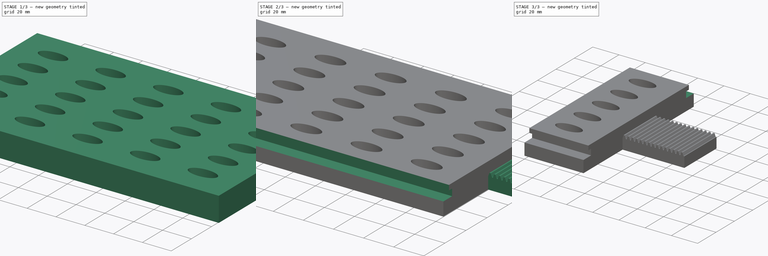
[diagram: build sequence overview — one tinted view per stage of 3, left to right]
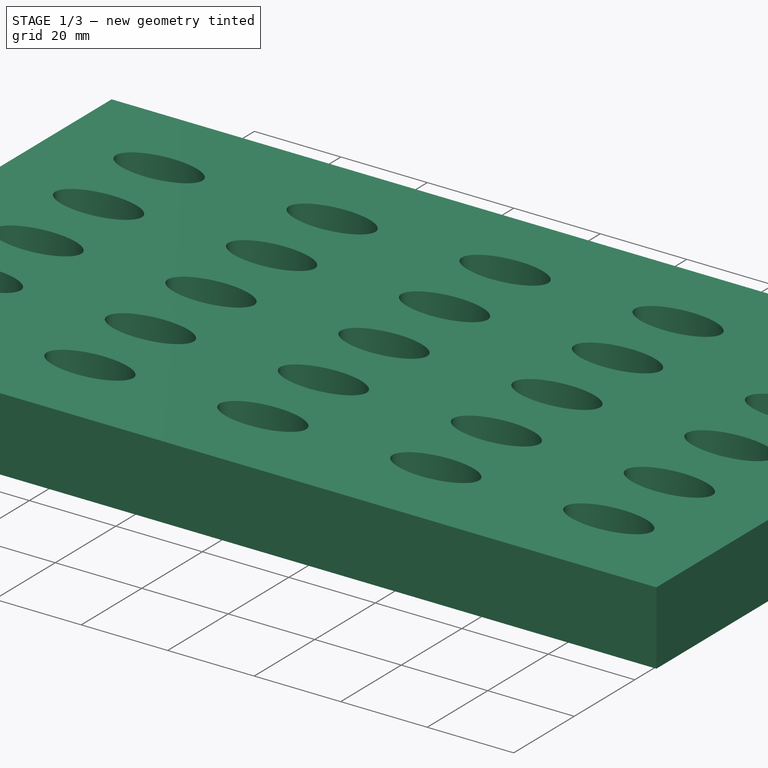
[diagram: stage 1 of 3 — iso view after this stage's code; geometry added in this stage tinted green]
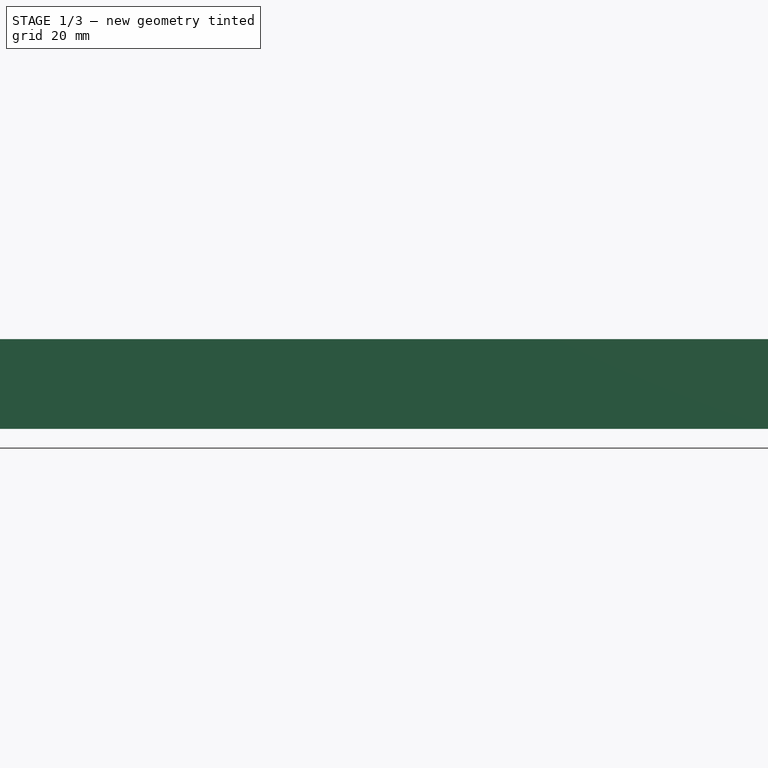
[diagram: stage 1 of 3 — front view after this stage's code; geometry added in this stage tinted green]
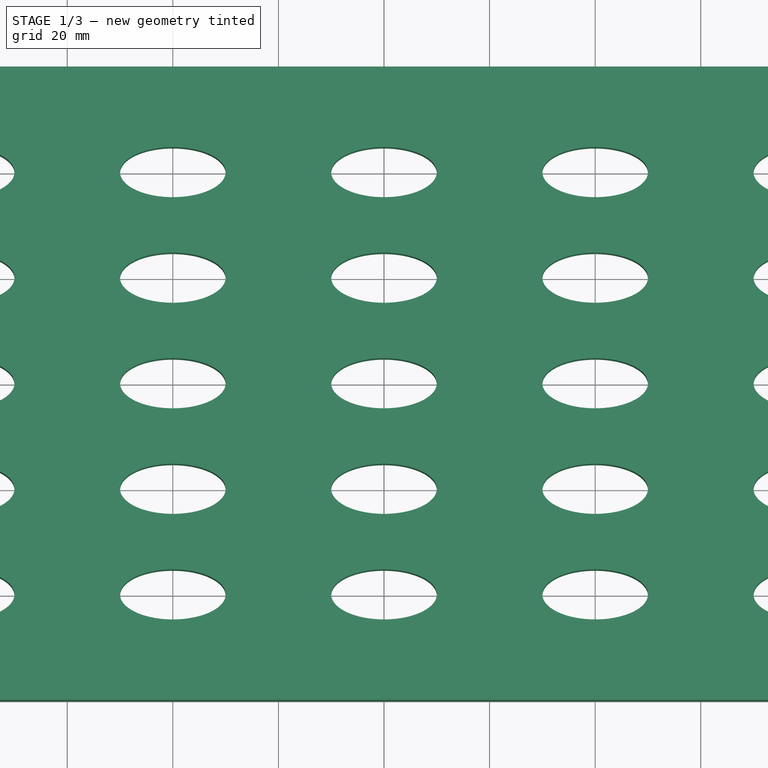
[diagram: stage 1 of 3 — top view after this stage's code; geometry added in this stage tinted green]
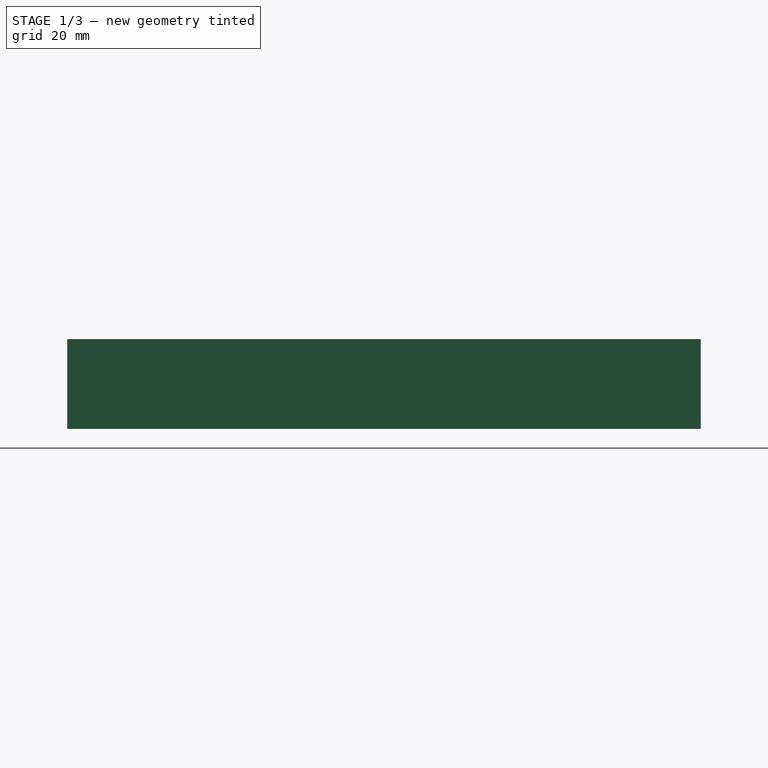
[diagram: stage 1 of 3 — right view after this stage's code; geometry added in this stage tinted green]
FCSTD DOCUMENT  (FreeCAD 0.21R33668 +26 (Git))
Label: bushing_jig_bottom
License: All rights reserved
LicenseURL: https://en.wikipedia.org/wiki/All_rights_reserved
objects: Sketcher::SketchObject×5, PartDesign::Pocket×3, PartDesign::Pad×2, PartDesign::Mirrored×1, PartDesign::Body×1
note: 17 computed .brp shape members not serialized (recipe doc carries the construction recipe); baked Part::Feature solids carry a one-line shape summary decoded from their .brp

FEATURE [Sketcher::SketchObject] Sketch
  FullyConstrained = true
  MapMode = 5
  Support = -> [XY_Plane]
  sketch-geometry (5):
    g0: LineSegment StartX=-105 StartY=-60 StartZ=0 EndX=-105 EndY=60 EndZ=0
    g1: LineSegment StartX=-105 StartY=60 StartZ=0 EndX=105 EndY=60 EndZ=0
    g2: LineSegment StartX=105 StartY=60 StartZ=0 EndX=105 EndY=-60 EndZ=0
    g3: LineSegment StartX=105 StartY=-60 StartZ=0 EndX=-105 EndY=-60 EndZ=0
    g4: GeomPoint X=0 Y=0 Z=0
  constraints (12):
    c: Coincident(g0,g1)
    c: Coincident(g1,g2)
    c: Coincident(g2,g3)
    c: Coincident(g3,g0)
    c: Horizontal(g1)
    c: Horizontal(g3)
    c: Vertical(g0)
    c: Vertical(g2)
    c: Symmetric(g1,g0,g4)
    c: Coincident(g4,g-1)
    c: DistanceX(g1,g1) = 210
    c: DistanceY(g2,g2) = 120
FEATURE [PartDesign::Pad] Pad
  Direction = (0,0,1)
  Length = 17
  Length2 = 10
  Profile = -> Sketch
  ReferenceAxis = -> Sketch [N_Axis]
  Reversed = true
  Type = 0
FEATURE [Sketcher::SketchObject] Sketch001
  FullyConstrained = true
  MapMode = 5
  Support = -> [XY_Plane]
  sketch-geometry (149):
    g0: Ellipse CenterX=-80 CenterY=40 CenterZ=0 NormalX=0 NormalY=0 NormalZ=1 MajorRadius=10 MinorRadius=4.75 AngleXU=0
    g1: LineSegment StartX=-70 StartY=40 StartZ=0 EndX=-90 EndY=40 EndZ=0
    g2: LineSegment StartX=-80 StartY=44.75 StartZ=0 EndX=-80 EndY=35.25 EndZ=0
    g3: GeomPoint X=-71.2001 Y=40 Z=0
    g4: GeomPoint X=-88.7999 Y=40 Z=0
    g5: Ellipse CenterX=-40 CenterY=40 CenterZ=0 NormalX=0 NormalY=0 NormalZ=1 MajorRadius=10 MinorRadius=4.75 AngleXU=0
    g6: LineSegment StartX=-30 StartY=40 StartZ=0 EndX=-50 EndY=40 EndZ=0
    g7: LineSegment StartX=-40 StartY=44.75 StartZ=0 EndX=-40 EndY=35.25 EndZ=0
    g8: GeomPoint X=-31.2001 Y=40 Z=0
    g9: GeomPoint X=-48.7999 Y=40 Z=0
    g10: LineSegment StartX=-80 StartY=40 StartZ=0 EndX=-40 EndY=40 EndZ=0
    g11: Ellipse CenterX=-3.4e-15 CenterY=40 CenterZ=0 NormalX=0 NormalY=0 NormalZ=1 MajorRadius=10 MinorRadius=4.75 AngleXU=0
    g12: LineSegment StartX=10 StartY=40 StartZ=0 EndX=-10 EndY=40 EndZ=0
    g13: LineSegment StartX=-3.4e-15 StartY=44.75 StartZ=0 EndX=-3.4e-15 EndY=35.25 EndZ=0
    g14: GeomPoint X=8.79986 Y=40 Z=0
    g15: GeomPoint X=-8.79986 Y=40 Z=0
    g16: LineSegment StartX=-40 StartY=40 StartZ=0 EndX=0 EndY=40 EndZ=0
    g17: Ellipse CenterX=40 CenterY=40 CenterZ=0 NormalX=0 NormalY=0 NormalZ=1 MajorRadius=10 MinorRadius=4.75 AngleXU=0
    g18: LineSegment StartX=50 StartY=40 StartZ=0 EndX=30 EndY=40 EndZ=0
    g19: LineSegment StartX=40 StartY=44.75 StartZ=0 EndX=40 EndY=35.25 EndZ=0
    g20: GeomPoint X=48.7999 Y=40 Z=0
    g21: GeomPoint X=31.2001 Y=40 Z=0
    g22: LineSegment StartX=-3.4e-15 StartY=40 StartZ=0 EndX=40 EndY=40 EndZ=0
    g23: Ellipse CenterX=80 CenterY=40 CenterZ=0 NormalX=0 NormalY=0 NormalZ=1 MajorRadius=10 MinorRadius=4.75 AngleXU=0
    g24: LineSegment StartX=90 StartY=40 StartZ=0 EndX=70 EndY=40 EndZ=0
    g25: LineSegment StartX=80 StartY=44.75 StartZ=0 EndX=80 EndY=35.25 EndZ=0
    g26: GeomPoint X=88.7999 Y=40 Z=0
    g27: GeomPoint X=71.2001 Y=40 Z=0
    g28: LineSegment StartX=40 StartY=40 StartZ=0 EndX=80 EndY=40 EndZ=0
    g29: Ellipse CenterX=-80 CenterY=20 CenterZ=0 NormalX=0 NormalY=0 NormalZ=1 MajorRadius=10 MinorRadius=4.75 AngleXU=0
    g30: LineSegment StartX=-70 StartY=20 StartZ=0 EndX=-90 EndY=20 EndZ=0
    g31: LineSegment StartX=-80 StartY=24.75 StartZ=0 EndX=-80 EndY=15.25 EndZ=0
    g32: GeomPoint X=-71.2001 Y=20 Z=0
    g33: GeomPoint X=-88.7999 Y=20 Z=0
    g34: LineSegment StartX=-80 StartY=40 StartZ=0 EndX=-80 EndY=20 EndZ=0
    g35: Ellipse CenterX=-40 CenterY=20 CenterZ=0 NormalX=0 NormalY=0 NormalZ=1 MajorRadius=10 MinorRadius=4.75 AngleXU=0
    g36: LineSegment StartX=-30 StartY=20 StartZ=0 EndX=-50 EndY=20 EndZ=0
    g37: LineSegment StartX=-40 StartY=24.75 StartZ=0 EndX=-40 EndY=15.25 EndZ=0
    g38: GeomPoint X=-31.2001 Y=20 Z=0
    g39: GeomPoint X=-48.7999 Y=20 Z=0
    g40: LineSegment StartX=-80 StartY=20 StartZ=0 EndX=-40 EndY=20 EndZ=0
    g41: Ellipse CenterX=0 CenterY=20 CenterZ=0 NormalX=0 NormalY=0 NormalZ=1 MajorRadius=10 MinorRadius=4.75 AngleXU=0
    g42: LineSegment StartX=10 StartY=20 StartZ=0 EndX=-10 EndY=20 EndZ=0
    g43: LineSegment StartX=-2.7e-15 StartY=24.75 StartZ=0 EndX=-2.7e-15 EndY=15.25 EndZ=0
    g44: GeomPoint X=8.79986 Y=20 Z=0
    g45: GeomPoint X=-8.79986 Y=20 Z=0
    g46: LineSegment StartX=-40 StartY=20 StartZ=0 EndX=0 EndY=20 EndZ=0
    g47: Ellipse CenterX=40 CenterY=20 CenterZ=0 NormalX=0 NormalY=0 NormalZ=1 MajorRadius=10 MinorRadius=4.75 AngleXU=0
    g48: LineSegment StartX=50 StartY=20 StartZ=0 EndX=30 EndY=20 EndZ=0
    g49: LineSegment StartX=40 StartY=24.75 StartZ=0 EndX=40 EndY=15.25 EndZ=0
    g50: GeomPoint X=48.7999 Y=20 Z=0
    g51: GeomPoint X=31.2001 Y=20 Z=0
    g52: LineSegment StartX=0 StartY=20 StartZ=0 EndX=40 EndY=20 EndZ=0
    g53: Ellipse CenterX=80 CenterY=20 CenterZ=0 NormalX=0 NormalY=0 NormalZ=1 MajorRadius=10 MinorRadius=4.75 AngleXU=0
    g54: LineSegment StartX=90 StartY=20 StartZ=0 EndX=70 EndY=20 EndZ=0
    g55: LineSegment StartX=80 StartY=24.75 StartZ=0 EndX=80 EndY=15.25 EndZ=0
    g56: GeomPoint X=88.7999 Y=20 Z=0
    g57: GeomPoint X=71.2001 Y=20 Z=0
    g58: LineSegment StartX=40 StartY=20 StartZ=0 EndX=80 EndY=20 EndZ=0
    g59: Ellipse CenterX=-80 CenterY=0 CenterZ=0 NormalX=0 NormalY=0 NormalZ=1 MajorRadius=10 MinorRadius=4.75 AngleXU=0
    g60: LineSegment StartX=-70 StartY=0 StartZ=0 EndX=-90 EndY=0 EndZ=0
    g61: LineSegment StartX=-80 StartY=4.75 StartZ=0 EndX=-80 EndY=-4.75 EndZ=0
    g62: GeomPoint X=-71.2001 Y=0 Z=0
    g63: GeomPoint X=-88.7999 Y=0 Z=0
    g64: LineSegment StartX=-80 StartY=20 StartZ=0 EndX=-80 EndY=0 EndZ=0
    g65: Ellipse CenterX=-40 CenterY=0 CenterZ=0 NormalX=0 NormalY=0 NormalZ=1 MajorRadius=10 MinorRadius=4.75 AngleXU=0
    g66: LineSegment StartX=-30 StartY=0 StartZ=0 EndX=-50 EndY=0 EndZ=0
    g67: LineSegment StartX=-40 StartY=4.75 StartZ=0 EndX=-40 EndY=-4.75 EndZ=0
    g68: GeomPoint X=-31.2001 Y=0 Z=0
    g69: GeomPoint X=-48.7999 Y=0 Z=0
    g70: LineSegment StartX=-80 StartY=0 StartZ=0 EndX=-40 EndY=0 EndZ=0
    g71: Ellipse CenterX=0 CenterY=0 CenterZ=0 NormalX=0 NormalY=0 NormalZ=1 MajorRadius=10 MinorRadius=4.75 AngleXU=0
    g72: LineSegment StartX=10 StartY=0 StartZ=0 EndX=-10 EndY=0 EndZ=0
    g73: LineSegment StartX=0 StartY=4.75 StartZ=0 EndX=0 EndY=-4.75 EndZ=0
    g74: GeomPoint X=8.79986 Y=0 Z=0
    g75: GeomPoint X=-8.79986 Y=0 Z=0
    g76: LineSegment StartX=-40 StartY=0 StartZ=0 EndX=0 EndY=0 EndZ=0
    g77: Ellipse CenterX=40 CenterY=0 CenterZ=0 NormalX=0 NormalY=0 NormalZ=1 MajorRadius=10 MinorRadius=4.75 AngleXU=0
    g78: LineSegment StartX=50 StartY=0 StartZ=0 EndX=30 EndY=0 EndZ=0
    g79: LineSegment StartX=40 StartY=4.75 StartZ=0 EndX=40 EndY=-4.75 EndZ=0
    g80: GeomPoint X=48.7999 Y=0 Z=0
    g81: GeomPoint X=31.2001 Y=0 Z=0
    g82: LineSegment StartX=0 StartY=0 StartZ=0 EndX=40 EndY=0 EndZ=0
    g83: Ellipse CenterX=80 CenterY=0 CenterZ=0 NormalX=0 NormalY=0 NormalZ=1 MajorRadius=10 MinorRadius=4.75 AngleXU=0
    g84: LineSegment StartX=90 StartY=0 StartZ=0 EndX=70 EndY=0 EndZ=0
    g85: LineSegment StartX=80 StartY=4.75 StartZ=0 EndX=80 EndY=-4.75 EndZ=0
    g86: GeomPoint X=88.7999 Y=0 Z=0
    g87: GeomPoint X=71.2001 Y=0 Z=0
    g88: LineSegment StartX=40 StartY=0 StartZ=0 EndX=80 EndY=0 EndZ=0
    g89: Ellipse CenterX=-80 CenterY=-20 CenterZ=0 NormalX=0 NormalY=0 NormalZ=1 MajorRadius=10 MinorRadius=4.75 AngleXU=0
    g90: LineSegment StartX=-70 StartY=-20 StartZ=0 EndX=-90 EndY=-20 EndZ=0
    g91: LineSegment StartX=-80 StartY=-15.25 StartZ=0 EndX=-80 EndY=-24.75 EndZ=0
    g92: GeomPoint X=-71.2001 Y=-20 Z=0
    g93: GeomPoint X=-88.7999 Y=-20 Z=0
    g94: LineSegment StartX=-80 StartY=0 StartZ=0 EndX=-80 EndY=-20 EndZ=0
    g95: Ellipse CenterX=-40 CenterY=-20 CenterZ=0 NormalX=0 NormalY=0 NormalZ=1 MajorRadius=10 MinorRadius=4.75 AngleXU=0
    g96: LineSegment StartX=-30 StartY=-20 StartZ=0 EndX=-50 EndY=-20 EndZ=0
    g97: LineSegment StartX=-40 StartY=-15.25 StartZ=0 EndX=-40 EndY=-24.75 EndZ=0
    g98: GeomPoint X=-31.2001 Y=-20 Z=0
    g99: GeomPoint X=-48.7999 Y=-20 Z=0
    g100: LineSegment StartX=-80 StartY=-20 StartZ=0 EndX=-40 EndY=-20 EndZ=0
    g101: Ellipse CenterX=1.3e-15 CenterY=-20 CenterZ=0 NormalX=0 NormalY=0 NormalZ=1 MajorRadius=10 MinorRadius=4.75 AngleXU=0
    g102: LineSegment StartX=10 StartY=-20 StartZ=0 EndX=-10 EndY=-20 EndZ=0
    g103: LineSegment StartX=1.3e-15 StartY=-15.25 StartZ=0 EndX=1.3e-15 EndY=-24.75 EndZ=0
    g104: GeomPoint X=8.79986 Y=-20 Z=0
    g105: GeomPoint X=-8.79986 Y=-20 Z=0
    g106: LineSegment StartX=-40 StartY=-20 StartZ=0 EndX=0 EndY=-20 EndZ=0
    g107: Ellipse CenterX=40 CenterY=-20 CenterZ=0 NormalX=0 NormalY=0 NormalZ=1 MajorRadius=10 MinorRadius=4.75 AngleXU=0
    g108: LineSegment StartX=50 StartY=-20 StartZ=0 EndX=30 EndY=-20 EndZ=0
    g109: LineSegment StartX=40 StartY=-15.25 StartZ=0 EndX=40 EndY=-24.75 EndZ=0
    g110: GeomPoint X=48.7999 Y=-20 Z=0
    g111: GeomPoint X=31.2001 Y=-20 Z=0
    g112: LineSegment StartX=1.3e-15 StartY=-20 StartZ=0 EndX=40 EndY=-20 EndZ=0
    g113: Ellipse CenterX=80 CenterY=-20 CenterZ=0 NormalX=0 NormalY=0 NormalZ=1 MajorRadius=10 MinorRadius=4.75 AngleXU=0
    g114: LineSegment StartX=90 StartY=-20 StartZ=0 EndX=70 EndY=-20 EndZ=0
    g115: LineSegment StartX=80 StartY=-15.25 StartZ=0 EndX=80 EndY=-24.75 EndZ=0
    g116: GeomPoint X=88.7999 Y=-20 Z=0
    g117: GeomPoint X=71.2001 Y=-20 Z=0
    g118: LineSegment StartX=40 StartY=-20 StartZ=0 EndX=80 EndY=-20 EndZ=0
    g119: Ellipse CenterX=-80 CenterY=-40 CenterZ=0 NormalX=0 NormalY=0 NormalZ=1 MajorRadius=10 MinorRadius=4.75 AngleXU=0
    g120: LineSegment StartX=-70 StartY=-40 StartZ=0 EndX=-90 EndY=-40 EndZ=0
    g121: LineSegment StartX=-80 StartY=-35.25 StartZ=0 EndX=-80 EndY=-44.75 EndZ=0
    g122: GeomPoint X=-71.2001 Y=-40 Z=0
    g123: GeomPoint X=-88.7999 Y=-40 Z=0
    g124: LineSegment StartX=-80 StartY=-20 StartZ=0 EndX=-80 EndY=-40 EndZ=0
    g125: Ellipse CenterX=-40 CenterY=-40 CenterZ=0 NormalX=0 NormalY=0 NormalZ=1 MajorRadius=10 MinorRadius=4.75 AngleXU=0
    g126: LineSegment StartX=-30 StartY=-40 StartZ=0 EndX=-50 EndY=-40 EndZ=0
    g127: LineSegment StartX=-40 StartY=-35.25 StartZ=0 EndX=-40 EndY=-44.75 EndZ=0
    g128: GeomPoint X=-31.2001 Y=-40 Z=0
    g129: GeomPoint X=-48.7999 Y=-40 Z=0
    g130: LineSegment StartX=-80 StartY=-40 StartZ=0 EndX=-40 EndY=-40 EndZ=0
    g131: Ellipse CenterX=3e-16 CenterY=-40 CenterZ=0 NormalX=0 NormalY=0 NormalZ=1 MajorRadius=10 MinorRadius=4.75 AngleXU=0
    g132: LineSegment StartX=10 StartY=-40 StartZ=0 EndX=-10 EndY=-40 EndZ=0
    g133: LineSegment StartX=3e-16 StartY=-35.25 StartZ=0 EndX=3e-16 EndY=-44.75 EndZ=0
    g134: GeomPoint X=8.79986 Y=-40 Z=0
    g135: GeomPoint X=-8.79986 Y=-40 Z=0
    g136: LineSegment StartX=-40 StartY=-40 StartZ=0 EndX=0 EndY=-40 EndZ=0
    g137: Ellipse CenterX=40 CenterY=-40 CenterZ=0 NormalX=0 NormalY=0 NormalZ=1 MajorRadius=10 MinorRadius=4.75 AngleXU=0
    g138: LineSegment StartX=50 StartY=-40 StartZ=0 EndX=30 EndY=-40 EndZ=0
    g139: LineSegment StartX=40 StartY=-35.25 StartZ=0 EndX=40 EndY=-44.75 EndZ=0
    g140: GeomPoint X=48.7999 Y=-40 Z=0
    g141: GeomPoint X=31.2001 Y=-40 Z=0
    g142: LineSegment StartX=3e-16 StartY=-40 StartZ=0 EndX=40 EndY=-40 EndZ=0
    g143: Ellipse CenterX=80 CenterY=-40 CenterZ=0 NormalX=0 NormalY=0 NormalZ=1 MajorRadius=10 MinorRadius=4.75 AngleXU=0
    g144: LineSegment StartX=90 StartY=-40 StartZ=0 EndX=70 EndY=-40 EndZ=0
    g145: LineSegment StartX=80 StartY=-35.25 StartZ=0 EndX=80 EndY=-44.75 EndZ=0
    g146: GeomPoint X=88.7999 Y=-40 Z=0
    g147: GeomPoint X=71.2001 Y=-40 Z=0
    g148: LineSegment StartX=40 StartY=-40 StartZ=0 EndX=80 EndY=-40 EndZ=0
  constraints (197):
    c: InternalAlignment(g1-g4 -> g0) x4
    c: Horizontal(g1)
    c: DistanceY(g2,g2) = 9.5
    c: DistanceX(g1,g1) = 20
    c: InternalAlignment(g6-g9 -> g5) x4
    c: Horizontal(g6)
    c: Equal(g2,g7) = 9.5
    c: Equal(g1,g6) = 20
    c: Coincident(g0,g10)
    c: Coincident(g5,g10)
    c: Distance(g10) = 40
    c: Angle(g10) = 0
    c: InternalAlignment(g12-g15 -> g11) x4
    c: Horizontal(g12)
    c: Equal(g2,g13) = 9.5
    c: Equal(g1,g12) = 20
    c: Coincident(g5,g16)
    c: Coincident(g11,g16)
    c: Equal(g10,g16)
    c: Parallel(g16,g10)
    c: InternalAlignment(g18-g21 -> g17) x4
    c: Horizontal(g18)
    c: Equal(g2,g19) = 9.5
    c: Equal(g1,g18) = 20
    c: Coincident(g11,g22)
    c: Coincident(g17,g22)
    c: Equal(g10,g22)
    c: Parallel(g22,g10)
    c: InternalAlignment(g24-g27 -> g23) x4
    c: Horizontal(g24)
    c: Equal(g2,g25) = 9.5
    c: Equal(g1,g24) = 20
    c: Coincident(g17,g28)
    c: Coincident(g23,g28)
    c: Equal(g10,g28)
    c: Parallel(g28,g10)
    c: InternalAlignment(g30-g33 -> g29) x4
    c: Horizontal(g30)
    c: Equal(g2,g31) = 9.5
    c: Equal(g1,g30) = 20
    c: Coincident(g0,g34)
    c: Coincident(g29,g34)
    c: Distance(g34) = 20
    c: Perpendicular(g34,g10)
    c: InternalAlignment(g36-g39 -> g35) x4
    c: Horizontal(g36)
    c: Equal(g2,g37) = 9.5
    c: Equal(g1,g36) = 20
    c: Coincident(g29,g40)
    c: Coincident(g35,g40)
    c: Equal(g10,g40)
    c: Parallel(g40,g10)
    c: InternalAlignment(g42-g45 -> g41) x4
    c: Horizontal(g42)
    c: Equal(g2,g43) = 9.5
    c: Equal(g1,g42) = 20
    c: Coincident(g35,g46)
    c: Coincident(g41,g46)
    c: Equal(g10,g46)
    c: Parallel(g46,g10)
    c: InternalAlignment(g48-g51 -> g47) x4
    c: Horizontal(g48)
    c: Equal(g2,g49) = 9.5
    c: Equal(g1,g48) = 20
    c: Coincident(g41,g52)
    c: Coincident(g47,g52)
    c: Equal(g10,g52)
    c: Parallel(g52,g10)
    c: InternalAlignment(g54-g57 -> g53) x4
    c: Horizontal(g54)
    c: Equal(g2,g55) = 9.5
    c: Equal(g1,g54) = 20
    c: Coincident(g47,g58)
    c: Coincident(g53,g58)
    c: Equal(g10,g58)
    c: Parallel(g58,g10)
    c: InternalAlignment(g60-g63 -> g59) x4
    c: Horizontal(g60)
    c: Equal(g2,g61) = 9.5
    c: Equal(g1,g60) = 20
    c: Coincident(g29,g64)
    c: Coincident(g59,g64)
    c: Equal(g34,g64)
    c: Perpendicular(g64,g10)
    c: InternalAlignment(g66-g69 -> g65) x4
    c: Horizontal(g66)
    c: Equal(g2,g67) = 9.5
    c: Equal(g1,g66) = 20
    c: Coincident(g59,g70)
    c: Coincident(g65,g70)
    c: Equal(g10,g70)
    c: Parallel(g70,g10)
    c: InternalAlignment(g72-g75 -> g71) x4
    c: Horizontal(g72)
    c: Equal(g2,g73) = 9.5
    c: Equal(g1,g72) = 20
    c: Coincident(g65,g76)
    c: Coincident(g71,g76)
    c: Equal(g10,g76)
    c: Parallel(g76,g10)
    c: InternalAlignment(g78-g81 -> g77) x4
    c: Horizontal(g78)
    c: Equal(g2,g79) = 9.5
    c: Equal(g1,g78) = 20
    c: Coincident(g71,g82)
    c: Coincident(g77,g82)
    c: Equal(g10,g82)
    c: Parallel(g82,g10)
    c: InternalAlignment(g84-g87 -> g83) x4
    c: Horizontal(g84)
    c: Equal(g2,g85) = 9.5
    c: Equal(g1,g84) = 20
    c: Coincident(g77,g88)
    c: Coincident(g83,g88)
    c: Equal(g10,g88)
    c: Parallel(g88,g10)
    c: InternalAlignment(g90-g93 -> g89) x4
    c: Horizontal(g90)
    c: Equal(g2,g91) = 9.5
    c: Equal(g1,g90) = 20
    c: Coincident(g59,g94)
    c: Coincident(g89,g94)
    c: Equal(g34,g94)
    c: Perpendicular(g94,g10)
    c: InternalAlignment(g96-g99 -> g95) x4
    c: Horizontal(g96)
    c: Equal(g2,g97) = 9.5
    c: Equal(g1,g96) = 20
    c: Coincident(g89,g100)
    c: Coincident(g95,g100)
    c: Equal(g10,g100)
    c: Parallel(g100,g10)
    c: InternalAlignment(g102-g105 -> g101) x4
    c: Horizontal(g102)
    c: Equal(g2,g103) = 9.5
    c: Equal(g1,g102) = 20
    c: Coincident(g95,g106)
    c: Coincident(g101,g106)
    c: Equal(g10,g106)
    c: Parallel(g106,g10)
    c: InternalAlignment(g108-g111 -> g107) x4
    c: Horizontal(g108)
    c: Equal(g2,g109) = 9.5
    c: Equal(g1,g108) = 20
    c: Coincident(g101,g112)
    c: Coincident(g107,g112)
    c: Equal(g10,g112)
    c: Parallel(g112,g10)
    c: InternalAlignment(g114-g117 -> g113) x4
    c: Horizontal(g114)
    c: Equal(g2,g115) = 9.5
    c: Equal(g1,g114) = 20
    c: Coincident(g107,g118)
    c: Coincident(g113,g118)
    c: Equal(g10,g118)
    c: Parallel(g118,g10)
    c: InternalAlignment(g120-g123 -> g119) x4
    c: Horizontal(g120)
    c: Equal(g2,g121) = 9.5
    c: Equal(g1,g120) = 20
    c: Coincident(g89,g124)
    c: Coincident(g119,g124)
    c: Equal(g34,g124)
    c: Perpendicular(g124,g10)
    c: InternalAlignment(g126-g129 -> g125) x4
    c: Horizontal(g126)
    c: Equal(g2,g127) = 9.5
    c: Equal(g1,g126) = 20
    c: Coincident(g119,g130)
    c: Coincident(g125,g130)
    c: Equal(g10,g130)
    c: Parallel(g130,g10)
    c: InternalAlignment(g132-g135 -> g131) x4
    c: Horizontal(g132)
    c: Equal(g2,g133) = 9.5
    c: Equal(g1,g132) = 20
    c: Coincident(g125,g136)
    c: Coincident(g131,g136)
    c: Equal(g10,g136)
    c: Parallel(g136,g10)
    c: InternalAlignment(g138-g141 -> g137) x4
    c: Horizontal(g138)
    c: Equal(g2,g139) = 9.5
    c: Equal(g1,g138) = 20
    c: Coincident(g131,g142)
    c: Coincident(g137,g142)
    c: Equal(g10,g142)
    c: Parallel(g142,g10)
    c: InternalAlignment(g144-g147 -> g143) x4
    c: Horizontal(g144)
    c: Equal(g2,g145) = 9.5
    c: Equal(g1,g144) = 20
    c: Coincident(g137,g148)
    c: Coincident(g143,g148)
    c: Equal(g10,g148)
    c: Parallel(g148,g10)
    c: Coincident(g71,g-1)
FEATURE [PartDesign::Pocket] Pocket
  BaseFeature = -> Pad
  Direction = (0,0,-1)
  Length = 21
  Length2 = 5
  Profile = -> Sketch001
  ReferenceAxis = -> Sketch001 [N_Axis]
  Type = 0
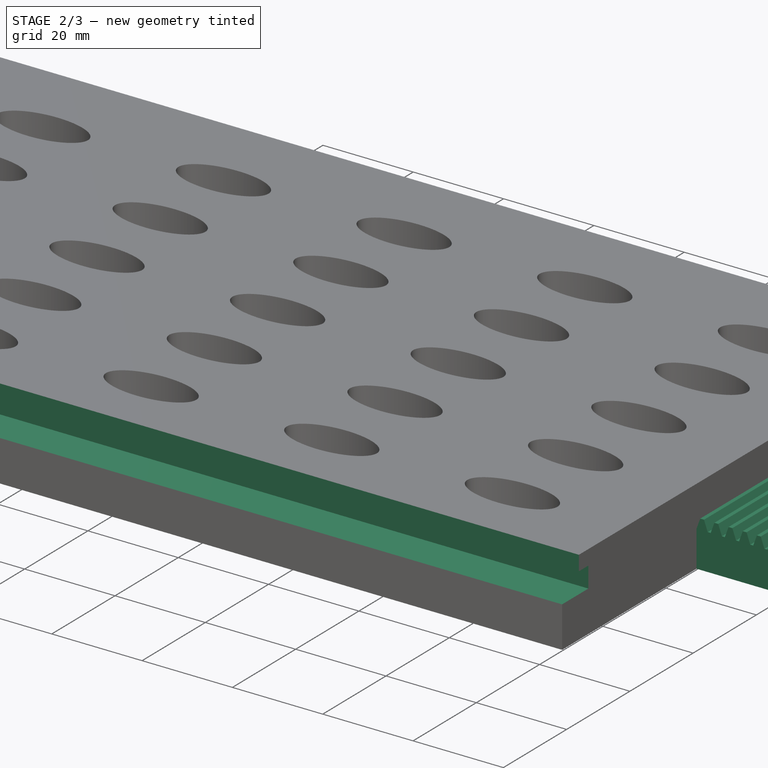
[diagram: stage 2 of 3 — iso view after this stage's code; geometry added in this stage tinted green]
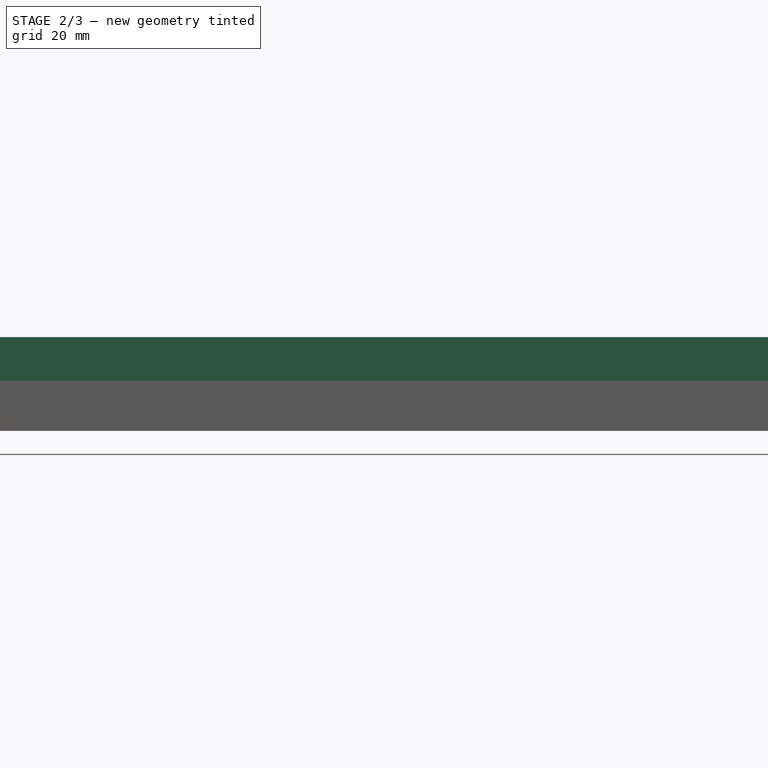
[diagram: stage 2 of 3 — front view after this stage's code; geometry added in this stage tinted green]
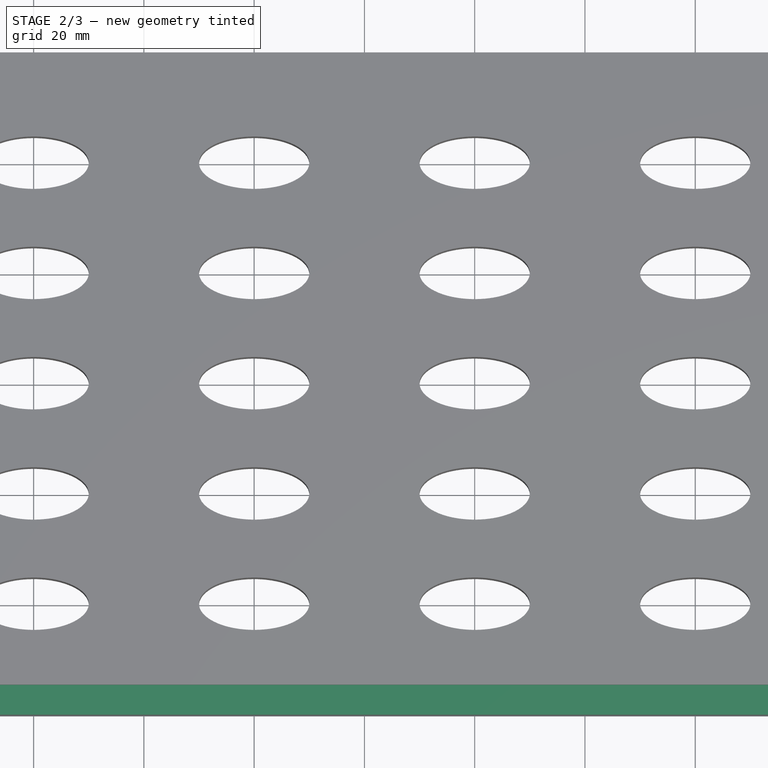
[diagram: stage 2 of 3 — top view after this stage's code; geometry added in this stage tinted green]
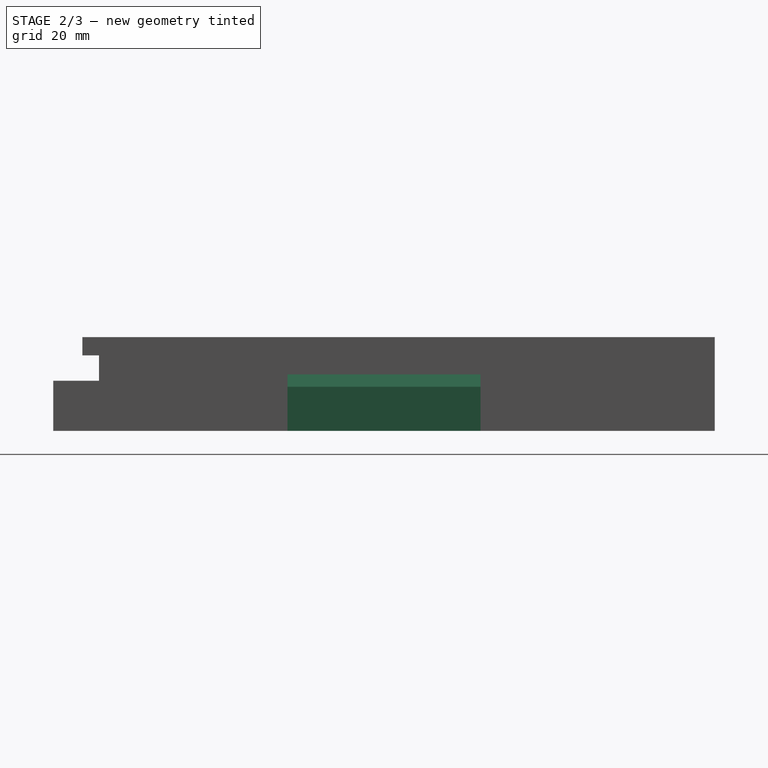
[diagram: stage 2 of 3 — right view after this stage's code; geometry added in this stage tinted green]
FEATURE [Sketcher::SketchObject] Sketch002
  ExternalGeometry = -> [Pocket]
  FullyConstrained = true
  MapMode = 5
  Placement = pos=(0,0,0) rot=(1,0,0;1.5708rad)
  Support = -> [XZ_Plane]
  sketch-geometry (77):
    g0: LineSegment StartX=105 StartY=-17 StartZ=0 EndX=152.1 EndY=-17 EndZ=0
    g1: LineSegment StartX=152.1 StartY=-17 StartZ=0 EndX=152.1 EndY=-9 EndZ=0
    g2: LineSegment StartX=105 StartY=-17 StartZ=0 EndX=105 EndY=-9 EndZ=0
    g3: LineSegment StartX=105.819 StartY=-6.75 StartZ=0 EndX=106.661 EndY=-6.75 EndZ=0
    g4: LineSegment StartX=105.819 StartY=-6.75 StartZ=0 EndX=105 EndY=-9 EndZ=0
    g5: LineSegment StartX=106.661 StartY=-6.75 StartZ=0 EndX=107.48 EndY=-9 EndZ=0
    g6: LineSegment StartX=105.455 StartY=-7.75 StartZ=0 EndX=150.985 EndY=-7.75 EndZ=0
    g7: LineSegment StartX=107.48 StartY=-9 StartZ=0 EndX=108.14 EndY=-9 EndZ=0
    g8: LineSegment StartX=108.14 StartY=-9 StartZ=0 EndX=108.959 EndY=-6.75 EndZ=0
    g9: LineSegment StartX=108.959 StartY=-6.75 StartZ=0 EndX=109.801 EndY=-6.75 EndZ=0
    g10: LineSegment StartX=109.801 StartY=-6.75 StartZ=0 EndX=110.62 EndY=-9 EndZ=0
    g11: GeomPoint X=108.595 Y=-7.75 Z=0
    g12: LineSegment StartX=105.455 StartY=-7.75 StartZ=0 EndX=105.455 EndY=-9 EndZ=0
    g13: LineSegment StartX=106.24 StartY=-6.75 StartZ=0 EndX=106.24 EndY=-9 EndZ=0
    g14: LineSegment StartX=105 StartY=-9 StartZ=0 EndX=105 EndY=-9 EndZ=0
    g15: LineSegment StartX=110.62 StartY=-9 StartZ=0 EndX=111.28 EndY=-9 EndZ=0
    g16: GeomPoint X=107.025 Y=-7.75 Z=0
    g17: GeomPoint X=110.165 Y=-7.75 Z=0
    g18: LineSegment StartX=112.099 StartY=-6.75 StartZ=0 EndX=111.28 EndY=-9 EndZ=0
    g19: LineSegment StartX=112.099 StartY=-6.75 StartZ=0 EndX=112.941 EndY=-6.75 EndZ=0
    g20: LineSegment StartX=112.941 StartY=-6.75 StartZ=0 EndX=113.76 EndY=-9 EndZ=0
    g21: LineSegment StartX=113.76 StartY=-9 StartZ=0 EndX=114.42 EndY=-9 EndZ=0
    g22: LineSegment StartX=114.42 StartY=-9 StartZ=0 EndX=115.239 EndY=-6.75 EndZ=0
    g23: LineSegment StartX=115.239 StartY=-6.75 StartZ=0 EndX=116.081 EndY=-6.75 EndZ=0
    g24: LineSegment StartX=116.081 StartY=-6.75 StartZ=0 EndX=116.9 EndY=-9 EndZ=0
    g25: LineSegment StartX=116.9 StartY=-9 StartZ=0 EndX=117.56 EndY=-9 EndZ=0
    g26: LineSegment StartX=105.819 StartY=-6.75 StartZ=0 EndX=112.099 EndY=-6.75 EndZ=0
    g27: LineSegment StartX=118.379 StartY=-6.75 StartZ=0 EndX=117.56 EndY=-9 EndZ=0
    g28: LineSegment StartX=118.379 StartY=-6.75 StartZ=0 EndX=119.221 EndY=-6.75 EndZ=0
    g29: LineSegment StartX=119.221 StartY=-6.75 StartZ=0 EndX=120.04 EndY=-9 EndZ=0
    g30: LineSegment StartX=120.04 StartY=-9 StartZ=0 EndX=120.7 EndY=-9 EndZ=0
    g31: LineSegment StartX=120.7 StartY=-9 StartZ=0 EndX=121.519 EndY=-6.75 EndZ=0
    g32: LineSegment StartX=121.519 StartY=-6.75 StartZ=0 EndX=122.361 EndY=-6.75 EndZ=0
    g33: LineSegment StartX=122.361 StartY=-6.75 StartZ=0 EndX=123.18 EndY=-9 EndZ=0
    g34: LineSegment StartX=123.18 StartY=-9 StartZ=0 EndX=123.84 EndY=-9 EndZ=0
    g35: LineSegment StartX=112.099 StartY=-6.75 StartZ=0 EndX=118.379 EndY=-6.75 EndZ=0
    g36: LineSegment StartX=124.659 StartY=-6.75 StartZ=0 EndX=123.84 EndY=-9 EndZ=0
    g37: LineSegment StartX=124.659 StartY=-6.75 StartZ=0 EndX=125.501 EndY=-6.75 EndZ=0
    g38: LineSegment StartX=125.501 StartY=-6.75 StartZ=0 EndX=126.32 EndY=-9 EndZ=0
    g39: LineSegment StartX=126.32 StartY=-9 StartZ=0 EndX=126.98 EndY=-9 EndZ=0
    g40: LineSegment StartX=126.98 StartY=-9 StartZ=0 EndX=127.799 EndY=-6.75 EndZ=0
    g41: LineSegment StartX=127.799 StartY=-6.75 StartZ=0 EndX=128.641 EndY=-6.75 EndZ=0
    g42: LineSegment StartX=128.641 StartY=-6.75 StartZ=0 EndX=129.46 EndY=-9 EndZ=0
    g43: LineSegment StartX=129.46 StartY=-9 StartZ=0 EndX=130.12 EndY=-9 EndZ=0
    g44: LineSegment StartX=118.379 StartY=-6.75 StartZ=0 EndX=124.659 EndY=-6.75 EndZ=0
    g45: LineSegment StartX=130.939 StartY=-6.75 StartZ=0 EndX=130.12 EndY=-9 EndZ=0
    g46: LineSegment StartX=130.939 StartY=-6.75 StartZ=0 EndX=131.781 EndY=-6.75 EndZ=0
    g47: LineSegment StartX=131.781 StartY=-6.75 StartZ=0 EndX=132.6 EndY=-9 EndZ=0
    g48: LineSegment StartX=132.6 StartY=-9 StartZ=0 EndX=133.26 EndY=-9 EndZ=0
    g49: LineSegment StartX=133.26 StartY=-9 StartZ=0 EndX=134.079 EndY=-6.75 EndZ=0
    g50: LineSegment StartX=134.079 StartY=-6.75 StartZ=0 EndX=134.921 EndY=-6.75 EndZ=0
    g51: LineSegment StartX=134.921 StartY=-6.75 StartZ=0 EndX=135.74 EndY=-9 EndZ=0
    g52: LineSegment StartX=135.74 StartY=-9 StartZ=0 EndX=136.4 EndY=-9 EndZ=0
    g53: LineSegment StartX=124.659 StartY=-6.75 StartZ=0 EndX=130.939 EndY=-6.75 EndZ=0
    g54: LineSegment StartX=137.219 StartY=-6.75 StartZ=0 EndX=136.4 EndY=-9 EndZ=0
    g55: LineSegment StartX=137.219 StartY=-6.75 StartZ=0 EndX=138.061 EndY=-6.75 EndZ=0
    g56: LineSegment StartX=138.061 StartY=-6.75 StartZ=0 EndX=138.88 EndY=-9 EndZ=0
    g57: LineSegment StartX=138.88 StartY=-9 StartZ=0 EndX=139.54 EndY=-9 EndZ=0
    g58: LineSegment StartX=139.54 StartY=-9 StartZ=0 EndX=140.359 EndY=-6.75 EndZ=0
    g59: LineSegment StartX=140.359 StartY=-6.75 StartZ=0 EndX=141.201 EndY=-6.75 EndZ=0
    g60: LineSegment StartX=141.201 StartY=-6.75 StartZ=0 EndX=142.02 EndY=-9 EndZ=0
    g61: LineSegment StartX=142.02 StartY=-9 StartZ=0 EndX=142.68 EndY=-9 EndZ=0
    g62: LineSegment StartX=130.939 StartY=-6.75 StartZ=0 EndX=137.219 EndY=-6.75 EndZ=0
    g63: LineSegment StartX=143.499 StartY=-6.75 StartZ=0 EndX=142.68 EndY=-9 EndZ=0
    g64: LineSegment StartX=143.499 StartY=-6.75 StartZ=0 EndX=144.341 EndY=-6.75 EndZ=0
    g65: LineSegment StartX=144.341 StartY=-6.75 StartZ=0 EndX=145.16 EndY=-9 EndZ=0
    g66: LineSegment StartX=145.16 StartY=-9 StartZ=0 EndX=145.82 EndY=-9 EndZ=0
    g67: LineSegment StartX=145.82 StartY=-9 StartZ=0 EndX=146.639 EndY=-6.75 EndZ=0
    g68: LineSegment StartX=146.639 StartY=-6.75 StartZ=0 EndX=147.481 EndY=-6.75 EndZ=0
    g69: LineSegment StartX=147.481 StartY=-6.75 StartZ=0 EndX=148.3 EndY=-9 EndZ=0
    g70: LineSegment StartX=148.3 StartY=-9 StartZ=0 EndX=148.96 EndY=-9 EndZ=0
    g71: LineSegment StartX=137.219 StartY=-6.75 StartZ=0 EndX=143.499 EndY=-6.75 EndZ=0
    g72: LineSegment StartX=149.779 StartY=-6.75 StartZ=0 EndX=148.96 EndY=-9 EndZ=0
    g73: LineSegment StartX=149.779 StartY=-6.75 StartZ=0 EndX=150.621 EndY=-6.75 EndZ=0
    g74: LineSegment StartX=150.621 StartY=-6.75 StartZ=0 EndX=151.44 EndY=-9 EndZ=0
    g75: LineSegment StartX=151.44 StartY=-9 StartZ=0 EndX=152.1 EndY=-9 EndZ=0
    g76: LineSegment StartX=143.499 StartY=-6.75 StartZ=0 EndX=149.779 EndY=-6.75 EndZ=0
  constraints (226):
    c: Horizontal(g0)
    c: Coincident(g1,g0)
    c: Vertical(g1)
    c: Coincident(g2,g0)
    c: Vertical(g2)
    c: Horizontal(g3)
    c: Coincident(g4,g3)
    c: Coincident(g5,g3)
    c: Horizontal(g6)
    c: DistanceY(g6,g3) = 1
    c: Coincident(g7,g5)
    c: Horizontal(g7)
    c: Coincident(g8,g7)
    c: Coincident(g9,g8)
    c: Horizontal(g9)
    c: Coincident(g10,g9)
    c: Horizontal(g8,g3)
    c: PointOnObject(g11,g8)
    c: PointOnObject(g11,g6)
    c: Horizontal(g5,g4)
    c: Coincident(g12,g6)
    c: Vertical(g12)
    c: Horizontal(g12,g4)
    c: Angle(g4,g12) = 0.349066
    c: Vertical(g13)
    c: Symmetric(g3,g3,g13)
    c: Symmetric(g4,g5,g13)
    c: Parallel(g4,g8)
    c: Parallel(g5,g10)
    c: Horizontal(g10,g7)
    c: DistanceX(g6,g11) = 3.14
    c: Equal(g3,g9)
    c: Coincident(g14,g4)
    c: Coincident(g14,g2)
    c: Vertical(g14)
    c: Coincident(g15,g10)
    c: Horizontal(g15)
    c: Equal(g7,g15)
    c: PointOnObject(g17,g10)
    c: PointOnObject(g16,g5)
    c: PointOnObject(g16,g6)
    c: PointOnObject(g17,g6)
    c: DistanceX(g6,g16) = 1.57
    c: Horizontal(g19)
    c: Coincident(g18,g19)
    c: Coincident(g20,g19)
    c: Coincident(g21,g20)
    c: Horizontal(g21)
    c: Coincident(g22,g21)
    c: Coincident(g23,g22)
    c: Horizontal(g23)
    c: Coincident(g24,g23)
    c: Horizontal(g22,g19)
    c: Horizontal(g20,g18)
    c: Parallel(g18,g22)
    c: Parallel(g20,g24)
    c: Horizontal(g24,g21)
    c: Equal(g19,g23)
    c: Coincident(g25,g24)
    c: Horizontal(g25)
    c: Equal(g21,g25)
    c: Coincident(g4,g26)
    c: Coincident(g18,g26)
    c: Angle(g26) = 0
    c: Horizontal(g28)
    c: Coincident(g27,g28)
    c: Coincident(g29,g28)
    c: Coincident(g30,g29)
    c: Horizontal(g30)
    c: Coincident(g31,g30)
    c: Coincident(g32,g31)
    c: Horizontal(g32)
    c: Coincident(g33,g32)
    c: Horizontal(g31,g28)
    c: Horizontal(g29,g27)
    c: Parallel(g27,g31)
    c: Parallel(g29,g33)
    c: Horizontal(g33,g30)
    c: Equal(g28,g32)
    c: Coincident(g34,g33)
    c: Horizontal(g34)
    c: Equal(g30,g34)
    c: Coincident(g18,g35)
    c: Coincident(g27,g35)
    c: Equal(g26,g35)
    c: Parallel(g35,g26)
    c: Horizontal(g37)
    c: Coincident(g36,g37)
    c: Coincident(g38,g37)
    c: Coincident(g39,g38)
    c: Horizontal(g39)
    c: Coincident(g40,g39)
    c: Coincident(g41,g40)
    c: Horizontal(g41)
    c: Coincident(g42,g41)
    c: Horizontal(g40,g37)
    c: Horizontal(g38,g36)
    c: Parallel(g36,g40)
    c: Parallel(g38,g42)
    c: Horizontal(g42,g39)
    c: Equal(g37,g41)
    c: Coincident(g43,g42)
    c: Horizontal(g43)
    c: Equal(g39,g43)
    c: Coincident(g27,g44)
    c: Coincident(g36,g44)
    c: Equal(g26,g44)
    c: Parallel(g44,g26)
    c: Horizontal(g46)
    c: Coincident(g45,g46)
    c: Coincident(g47,g46)
    c: Coincident(g48,g47)
    c: Horizontal(g48)
    c: Coincident(g49,g48)
    c: Coincident(g50,g49)
    c: Horizontal(g50)
    c: Coincident(g51,g50)
    c: Horizontal(g49,g46)
    c: Horizontal(g47,g45)
    c: Parallel(g45,g49)
    c: Parallel(g47,g51)
    c: Horizontal(g51,g48)
    c: Equal(g46,g50)
    c: Coincident(g52,g51)
    c: Horizontal(g52)
    c: Equal(g48,g52)
    c: Coincident(g36,g53)
    c: Coincident(g45,g53)
    c: Equal(g26,g53)
    c: Parallel(g53,g26)
    c: Horizontal(g55)
    c: Coincident(g54,g55)
    c: Coincident(g56,g55)
    c: Coincident(g57,g56)
    c: Horizontal(g57)
    c: Coincident(g58,g57)
    c: Coincident(g59,g58)
    c: Horizontal(g59)
    c: Coincident(g60,g59)
    c: Horizontal(g58,g55)
    c: Horizontal(g56,g54)
    c: Parallel(g54,g58)
    c: Parallel(g56,g60)
    c: Horizontal(g60,g57)
    c: Equal(g55,g59)
    c: Coincident(g61,g60)
    c: Horizontal(g61)
    c: Equal(g57,g61)
    c: Coincident(g45,g62)
    c: Coincident(g54,g62)
    c: Equal(g26,g62)
    c: Parallel(g62,g26)
    c: Horizontal(g64)
    c: Coincident(g63,g64)
    c: Coincident(g65,g64)
    c: Coincident(g66,g65)
    c: Horizontal(g66)
    c: Coincident(g67,g66)
    c: Coincident(g68,g67)
    c: Horizontal(g68)
    c: Coincident(g69,g68)
    c: Horizontal(g67,g64)
    c: Horizontal(g65,g63)
    c: Parallel(g63,g67)
    c: Parallel(g65,g69)
    c: Horizontal(g69,g66)
    c: Equal(g64,g68)
    c: Coincident(g70,g69)
    c: Horizontal(g70)
    c: Equal(g66,g70)
    c: Coincident(g54,g71)
    c: Coincident(g63,g71)
    c: Equal(g26,g71)
    c: Parallel(g71,g26)
    c: Horizontal(g73)
    c: Coincident(g72,g73)
    c: Coincident(g74,g73)
    c: Coincident(g75,g74)
    c: Horizontal(g75)
    c: Horizontal(g74,g72)
    c: Coincident(g63,g76)
    c: Coincident(g72,g76)
    c: Equal(g26,g76)
    c: Parallel(g76,g26)
    c: Equal(g15,g21)
    c: Parallel(g18,g8)
    c: Parallel(g10,g20)
    c: Equal(g9,g19)
    c: Equal(g9,g28)
    c: Equal(g28,g37)
    c: Equal(g37,g46)
    c: Equal(g46,g55)
    c: Equal(g55,g64)
    c: Equal(g64,g73)
    c: Equal(g15,g30)
    c: Equal(g30,g39)
    c: Equal(g39,g48)
    c: Equal(g48,g57)
    c: Equal(g57,g66)
    c: Equal(g66,g75)
    c: Parallel(g8,g27)
    c: Parallel(g27,g36)
    c: Parallel(g36,g45)
    c: Parallel(g45,g54)
    c: Parallel(g54,g63)
    c: Parallel(g63,g72)
    c: Parallel(g10,g29)
    c: Parallel(g29,g38)
    c: Parallel(g38,g47)
    c: Parallel(g47,g56)
    c: Parallel(g56,g65)
    c: Parallel(g65,g74)
    c: Horizontal(g18,g27)
    c: Horizontal(g27,g36)
    c: Horizontal(g36,g45)
    c: Horizontal(g45,g54)
    c: Horizontal(g54,g63)
    c: Horizontal(g63,g72)
    c: Coincident(g18,g15)
    c: Coincident(g1,g75)
    c: Coincident(g0,g-3)
    c: PointOnObject(g6,g74)
    c: DistanceY(g0,g2) = 8
    c: DistanceY(g0,g6) = 9.25
    c: DistanceY(g4,g6) = 1.25
    c: PointOnObject(g6,g4)
FEATURE [PartDesign::Pad] Pad001
  BaseFeature = -> Pocket
  Direction = (0,-1,-2e-16)
  Length = 35
  Length2 = 10
  Midplane = true
  Profile = -> Sketch002
  ReferenceAxis = -> Sketch002 [N_Axis]
  Refine = true
  Type = 0
FEATURE [Sketcher::SketchObject] Sketch003
  FullyConstrained = true
  MapMode = 5
  Placement = pos=(0,0,0) rot=(0.57735,0.57735,0.57735;2.0944rad)
  Support = -> [YZ_Plane]
  sketch-geometry (6):
    g0: LineSegment StartX=-60 StartY=0 StartZ=0 EndX=-60 EndY=-7.9 EndZ=0
    g1: LineSegment StartX=-60 StartY=-7.9 StartZ=0 EndX=-51.7 EndY=-7.9 EndZ=0
    g2: LineSegment StartX=-51.7 StartY=-7.9 StartZ=0 EndX=-51.7 EndY=-3.3 EndZ=0
    g3: LineSegment StartX=-51.7 StartY=-3.3 StartZ=0 EndX=-54.7 EndY=-3.3 EndZ=0
    g4: LineSegment StartX=-54.7 StartY=-3.3 StartZ=0 EndX=-54.7 EndY=0 EndZ=0
    g5: LineSegment StartX=-54.7 StartY=0 StartZ=0 EndX=-60 EndY=0 EndZ=0
  constraints (18):
    c: PointOnObject(g0,g-1)
    c: Vertical(g0)
    c: Coincident(g2,g1)
    c: Horizontal(g3)
    c: PointOnObject(g4,g-1)
    c: Vertical(g4)
    c: Coincident(g5,g0)
    c: Horizontal(g1)
    c: Vertical(g2)
    c: Coincident(g2,g3)
    c: Coincident(g1,g0)
    c: DistanceX(g5,g5) = 5.3
    c: Coincident(g5,g4)
    c: Coincident(g3,g4)
    c: DistanceY(g2,g2) = 4.6
    c: DistanceX(g0,g-1) = 60
    c: DistanceX(g1,g1) = 8.3
    c: DistanceY(g4,g4) = 3.3
FEATURE [PartDesign::Pocket] Pocket001
  BaseFeature = -> Pad001
  Direction = (-1,2e-16,-3e-16)
  Length = 5
  Length2 = 5
  Midplane = true
  Profile = -> Sketch003
  ReferenceAxis = -> Sketch003 [N_Axis]
  Type = 1
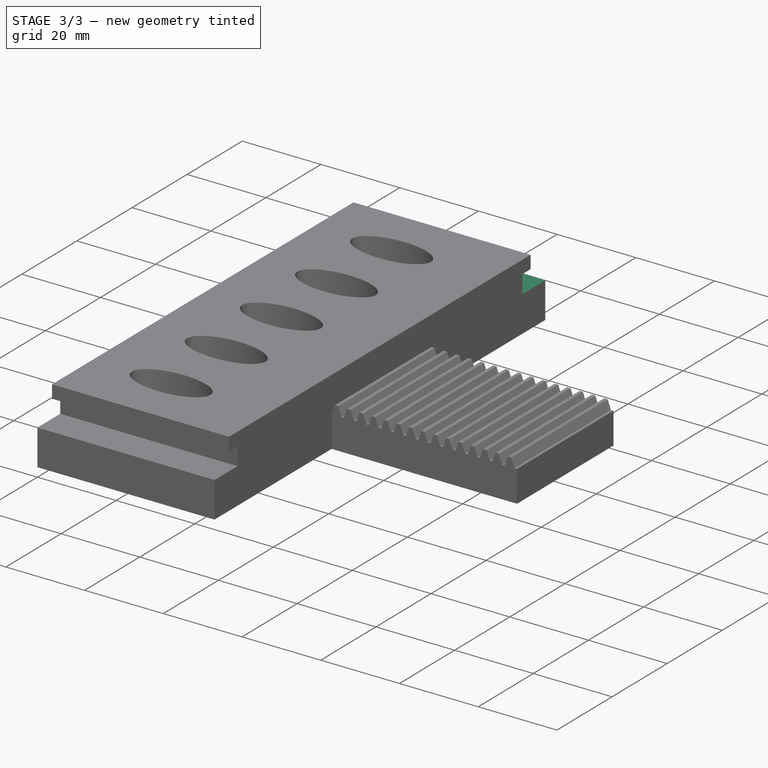
[diagram: stage 3 of 3 — iso view after this stage's code; geometry added in this stage tinted green]
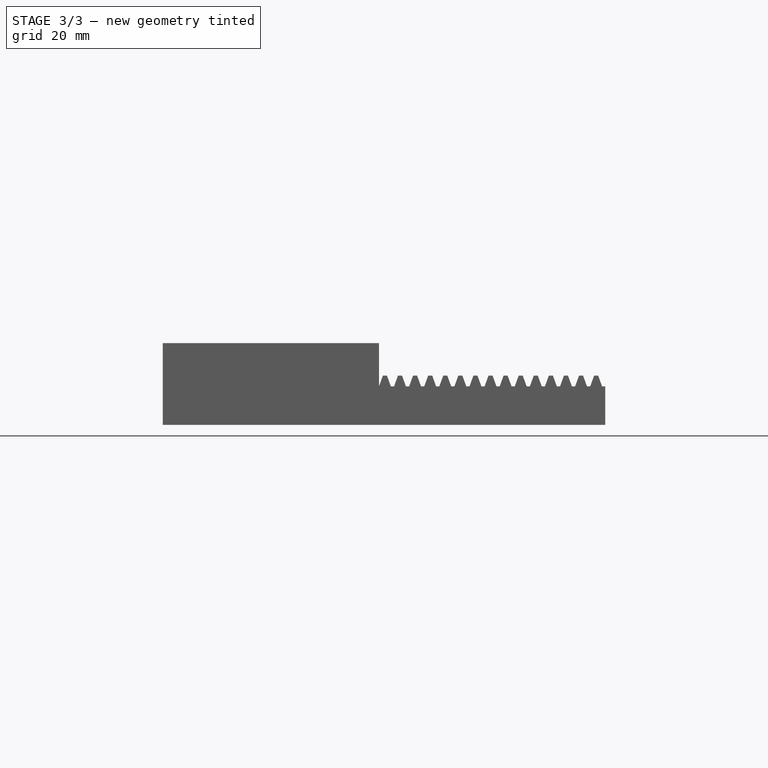
[diagram: stage 3 of 3 — front view after this stage's code; geometry added in this stage tinted green]
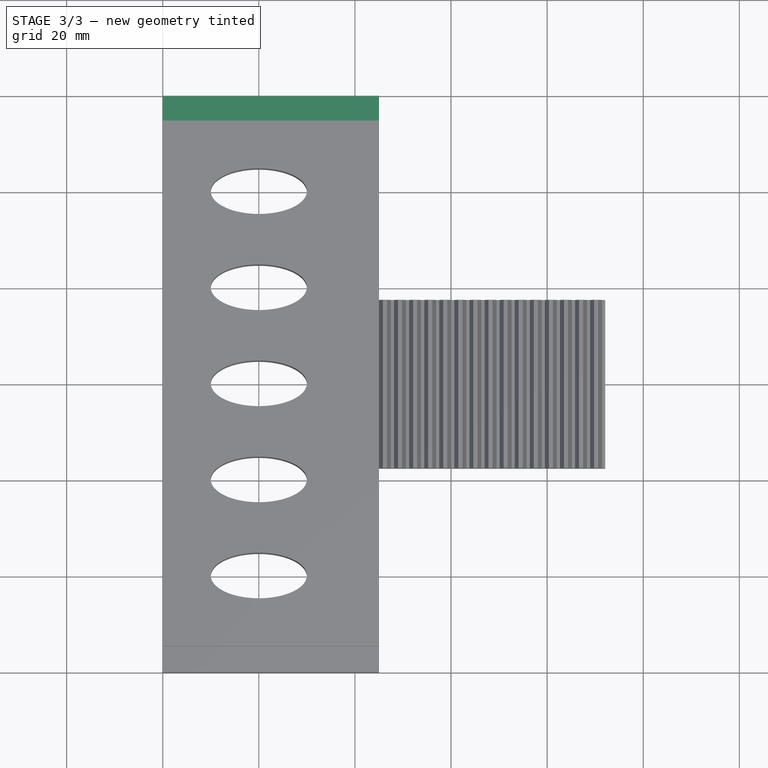
[diagram: stage 3 of 3 — top view after this stage's code; geometry added in this stage tinted green]
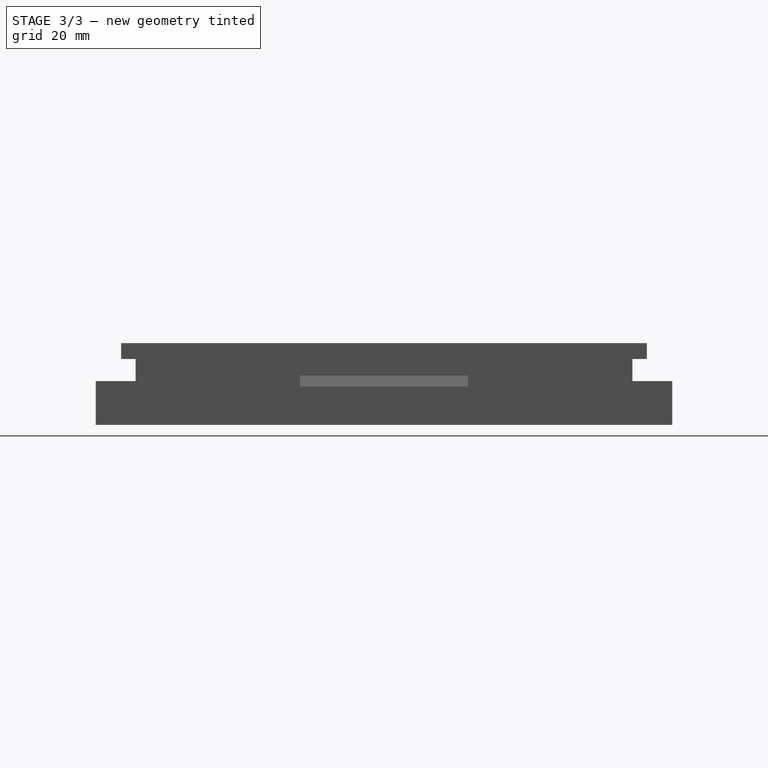
[diagram: stage 3 of 3 — right view after this stage's code; geometry added in this stage tinted green]
FEATURE [PartDesign::Mirrored] Mirrored
  BaseFeature = -> Pocket001
  MirrorPlane = -> Sketch003 [V_Axis]
  Originals = -> [Pocket001]
FEATURE [Sketcher::SketchObject] Sketch004
  FullyConstrained = false
  MapMode = 5
  Support = -> [XY_Plane]
  sketch-geometry (5):
    g0: LineSegment StartX=-129.023 StartY=-74.3761 StartZ=0 EndX=60 EndY=-74.3761 EndZ=0
    g1: LineSegment StartX=60 StartY=-74.3761 StartZ=0 EndX=60 EndY=74.3761 EndZ=0
    g2: LineSegment StartX=60 StartY=74.3761 StartZ=0 EndX=-129.023 EndY=74.3761 EndZ=0
    g3: LineSegment StartX=-129.023 StartY=74.3761 StartZ=0 EndX=-129.023 EndY=-74.3761 EndZ=0
    g4: GeomPoint X=-129.023 Y=0 Z=0
  constraints (11):
    c: Coincident(g0,g1)
    c: Coincident(g1,g2)
    c: Coincident(g2,g3)
    c: Coincident(g3,g0)
    c: Horizontal(g0)
    c: Horizontal(g2)
    c: Vertical(g1)
    c: Vertical(g3)
    c: Symmetric(g2,g0,g4)
    c: PointOnObject(g4,g-1)
    c: DistanceX(g-1,g1) = 60
FEATURE [PartDesign::Pocket] Pocket002
  BaseFeature = -> Mirrored
  Direction = (0,0,-1)
  Length = 5
  Length2 = 5
  Profile = -> Sketch004
  ReferenceAxis = -> Sketch004 [N_Axis]
  Type = 1
FEATURE [PartDesign::Body] Body
  Group = -> [Sketch,Pad,Sketch001,Pocket,Sketch002,Pad001,Sketch003,Pocket001,Mirrored,Sketch004,Pocket002]
  Origin = -> Origin
  Tip = -> Pocket002
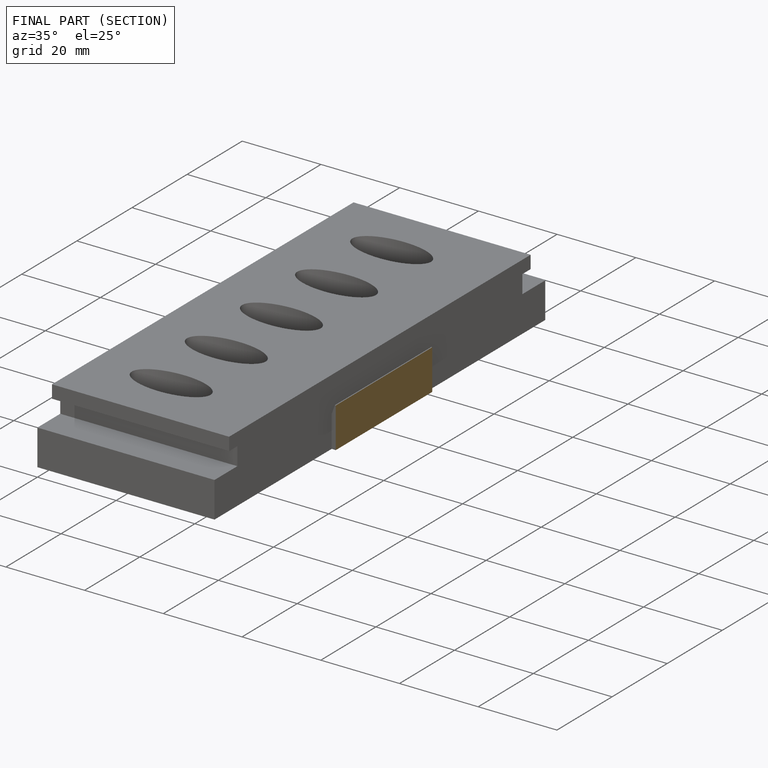
[diagram: finished part — half-section view (interior)]
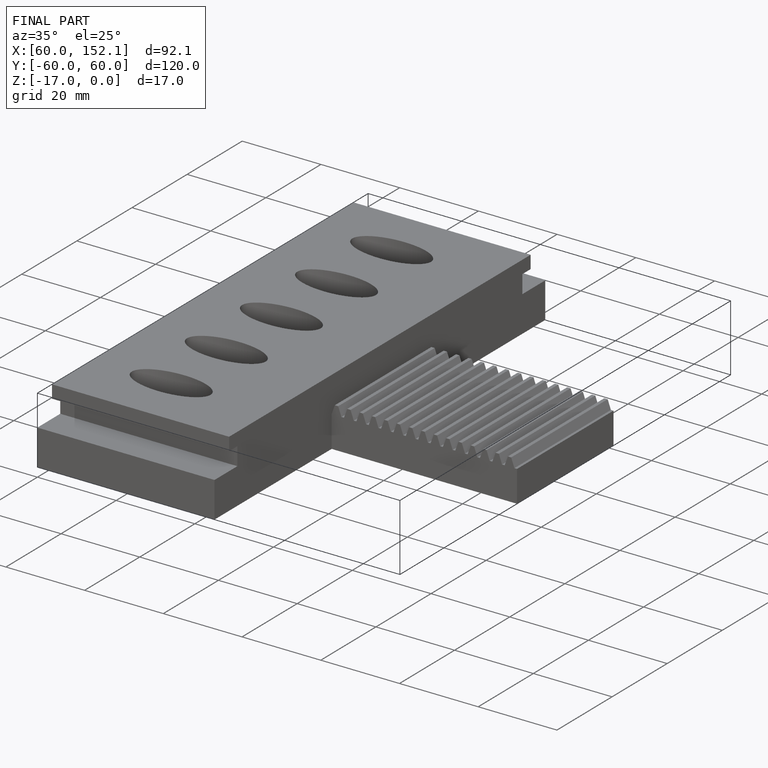
[diagram: finished part — iso view with bounding-box wireframe]
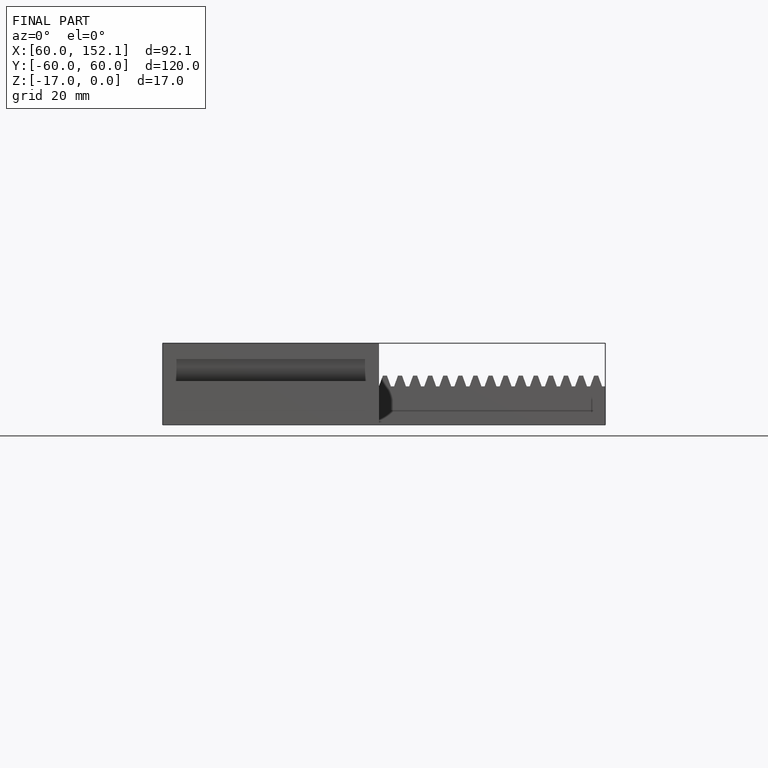
[diagram: finished part — front view with bounding-box wireframe]
